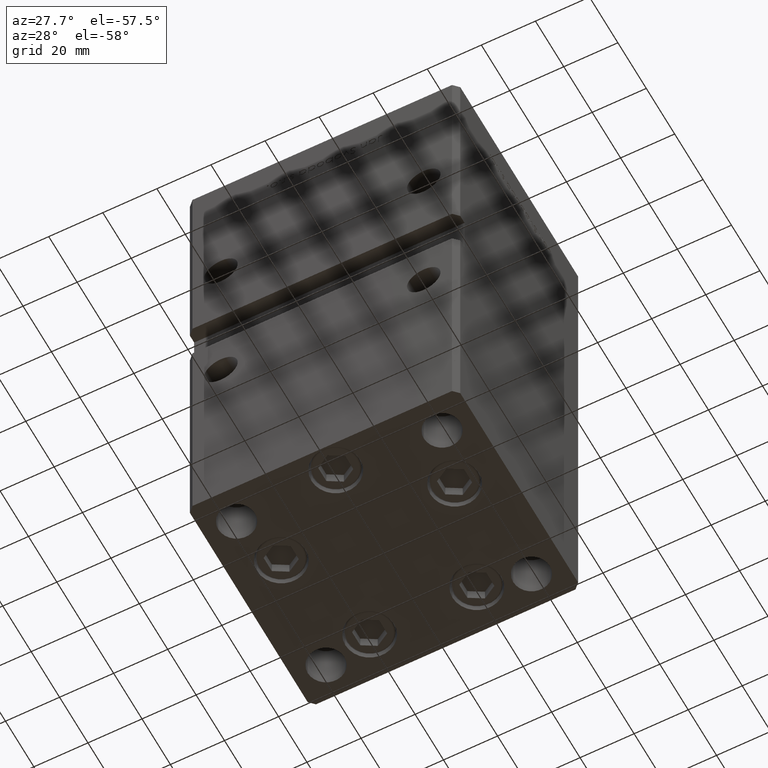
[diagram: clean part render]
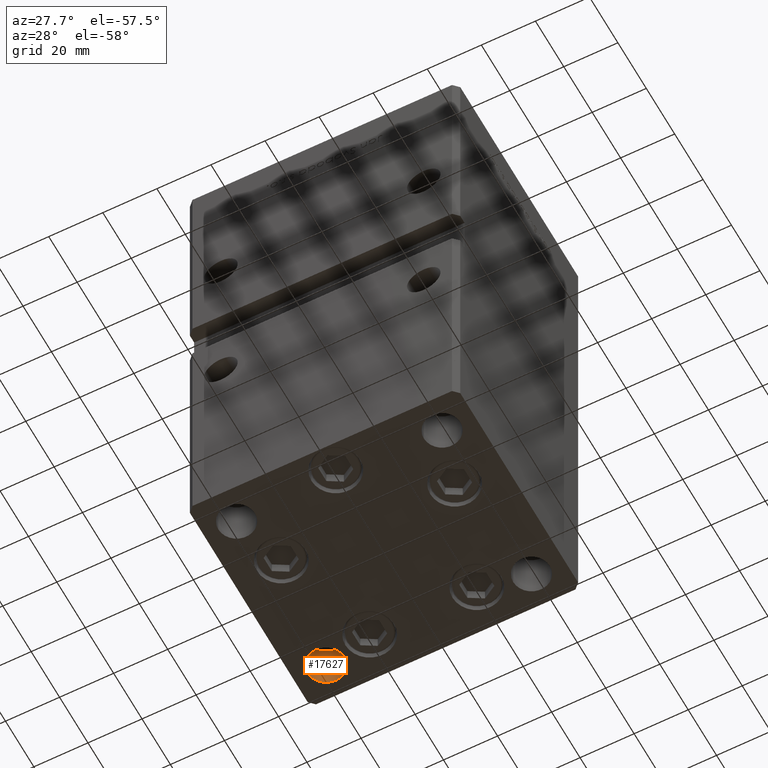
[diagram: same view with one face highlighted and labeled with its STEP entity id]
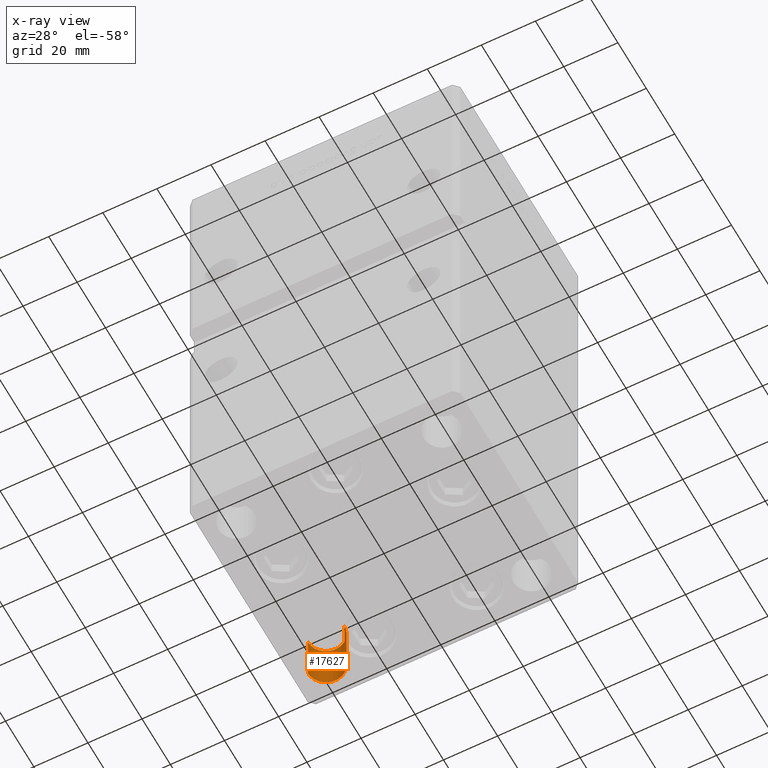
[diagram: x-ray of the same camera — body ghosted, the highlighted face saturated]
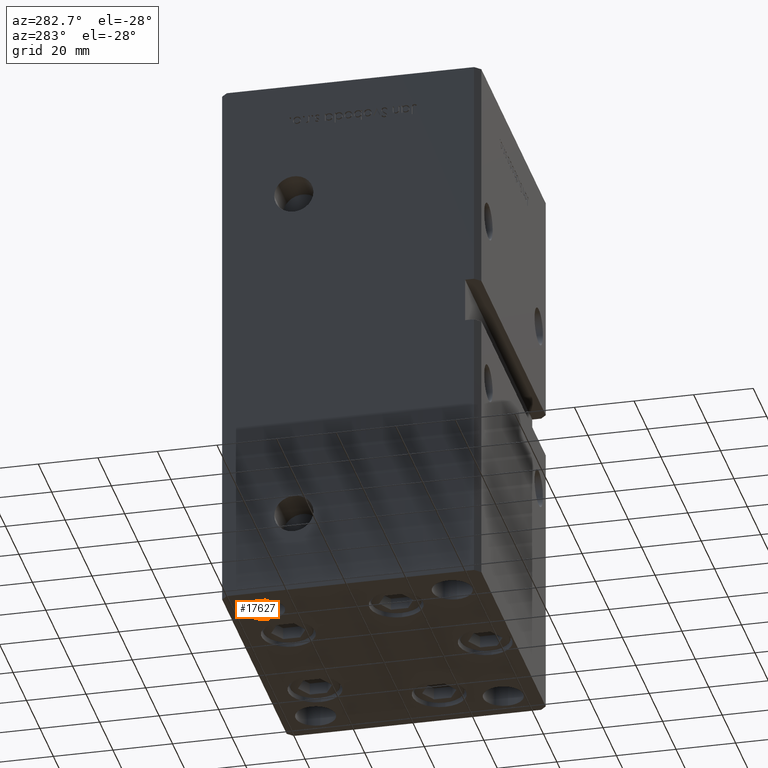
[diagram: same view with one face highlighted and labeled with its STEP entity id]
A machine part, auxiliary view. The second image highlights one B-rep face of the part: STEP entity #17627.
The next image is the same camera in x-ray: the body ghosted, the highlighted face saturated — about 0% of this face is hidden behind the body in this view.
A second angle (auxiliary view) of the same face is appended — the face is thin or edge-on in the first view.
In plain terms, the highlighted cylindrical surface (edge-blend (fillet) strip) has radius 6.75 mm, axis along (0, 0, -1).
Its self-contained STEP definition (entity closure, byte-faithful):
#460 = CIRCLE ( 'NONE', #10721, 6.749999999999999112 ) ;
#852 = EDGE_CURVE ( 'NONE', #33592, #52439, #32934, .T. ) ;
#1261 = CARTESIAN_POINT ( 'NONE',  ( 44.75000000000000000, 31.49999999999999289, -19.00000000000000000 ) ) ;
#3749 = VECTOR ( 'NONE', #33822, 1000.000000000000000 ) ;
#4020 = CARTESIAN_POINT ( 'NONE',  ( 31.25000000000000000, 31.49999999999999289, -19.00000000000000000 ) ) ;
#5735 = FACE_OUTER_BOUND ( 'NONE', #7834, .T. ) ;
#5778 = ORIENTED_EDGE ( 'NONE', *, *, #35649, .T. ) ;
#6512 = CARTESIAN_POINT ( 'NONE',  ( 38.00000000000000000, 31.49999999999999289, 0.000000000000000000 ) ) ;
#6890 = ORIENTED_EDGE ( 'NONE', *, *, #44533, .F. ) ;
#7334 = CARTESIAN_POINT ( 'NONE',  ( 38.00000000000000000, 31.49999999999999289, -19.00000000000000000 ) ) ;
#7834 = EDGE_LOOP ( 'NONE', ( #25607, #6890, #5778, #8574 ) ) ;
#8318 = DIRECTION ( 'NONE',  ( 0.000000000000000000, 0.000000000000000000, 1.000000000000000000 ) ) ;
#8574 = ORIENTED_EDGE ( 'NONE', *, *, #852, .T. ) ;
#10050 = CARTESIAN_POINT ( 'NONE',  ( 44.75000000000000000, 31.49999999999999289, 0.000000000000000000 ) ) ;
#10721 = AXIS2_PLACEMENT_3D ( 'NONE', #45206, #8318, #20955 ) ;
#10808 = DIRECTION ( 'NONE',  ( 1.000000000000000000, 0.000000000000000000, 0.000000000000000000 ) ) ;
#13440 = CARTESIAN_POINT ( 'NONE',  ( 44.75000000000000000, 31.49999999999999289, -19.00000000000000000 ) ) ;
#14836 = DIRECTION ( 'NONE',  ( -0.000000000000000000, 0.000000000000000000, 1.000000000000000000 ) ) ;
#17627 = ADVANCED_FACE ( 'NONE', ( #5735 ), #19968, .F. ) ;
#19968 = CYLINDRICAL_SURFACE ( 'NONE', #33319, 6.749999999999999112 ) ;
#20895 = AXIS2_PLACEMENT_3D ( 'NONE', #6512, #14836, #10808 ) ;
#20950 = DIRECTION ( 'NONE',  ( -0.000000000000000000, -0.000000000000000000, 1.000000000000000000 ) ) ;
#20955 = DIRECTION ( 'NONE',  ( 1.000000000000000000, 0.000000000000000000, 0.000000000000000000 ) ) ;
#23102 = EDGE_CURVE ( 'NONE', #38168, #52439, #32811, .T. ) ;
#25571 = VECTOR ( 'NONE', #20950, 1000.000000000000000 ) ;
#25607 = ORIENTED_EDGE ( 'NONE', *, *, #23102, .F. ) ;
#26585 = CARTESIAN_POINT ( 'NONE',  ( 31.25000000000000000, 31.49999999999999289, 0.000000000000000000 ) ) ;
#28909 = CARTESIAN_POINT ( 'NONE',  ( 31.25000000000000000, 31.49999999999999289, -19.00000000000000000 ) ) ;
#32811 = LINE ( 'NONE', #4020, #25571 ) ;
#32934 = CIRCLE ( 'NONE', #20895, 6.749999999999999112 ) ;
#33319 = AXIS2_PLACEMENT_3D ( 'NONE', #7334, #47995, #36681 ) ;
#33592 = VERTEX_POINT ( 'NONE', #10050 ) ;
#33822 = DIRECTION ( 'NONE',  ( -0.000000000000000000, -0.000000000000000000, 1.000000000000000000 ) ) ;
#34071 = VERTEX_POINT ( 'NONE', #13440 ) ;
#35649 = EDGE_CURVE ( 'NONE', #34071, #33592, #37877, .T. ) ;
#36681 = DIRECTION ( 'NONE',  ( 1.000000000000000000, 0.000000000000000000, 0.000000000000000000 ) ) ;
#37877 = LINE ( 'NONE', #1261, #3749 ) ;
#38168 = VERTEX_POINT ( 'NONE', #28909 ) ;
#44533 = EDGE_CURVE ( 'NONE', #34071, #38168, #460, .T. ) ;
#45206 = CARTESIAN_POINT ( 'NONE',  ( 38.00000000000000000, 31.49999999999999289, -19.00000000000000000 ) ) ;
#47995 = DIRECTION ( 'NONE',  ( -0.000000000000000000, -0.000000000000000000, 1.000000000000000000 ) ) ;
#52439 = VERTEX_POINT ( 'NONE', #26585 ) ;